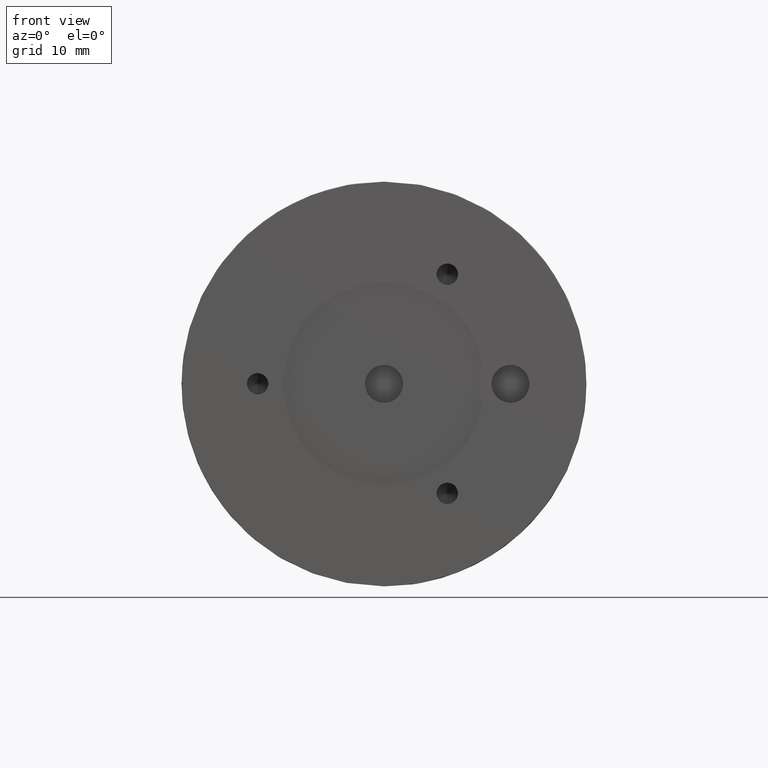
[diagram: clean part render]
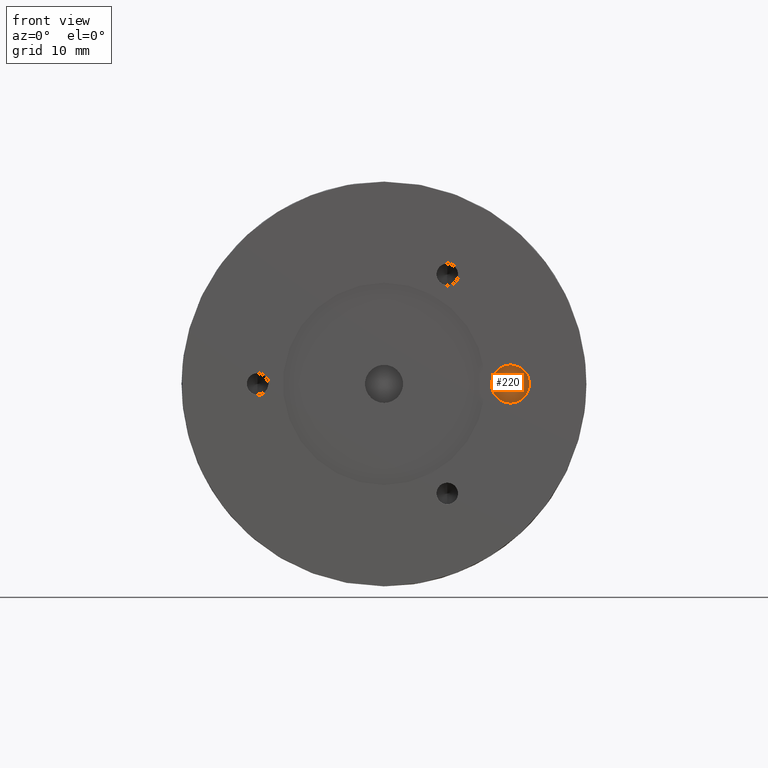
[diagram: same view with one face highlighted and labeled with its STEP entity id]
A machine part, front view. The second image highlights one B-rep face of the part: STEP entity #220.
In plain terms, the highlighted planar face has unit normal (0, 1, 0).
Its self-contained STEP definition (entity closure, byte-faithful):
#8 = ORIENTED_EDGE ( 'NONE', *, *, #633, .T. ) ;
#38 = ORIENTED_EDGE ( 'NONE', *, *, #161, .T. ) ;
#110 = DIRECTION ( 'NONE',  ( 0.0000000000000000000, -0.0000000000000000000, 1.000000000000000000 ) ) ;
#123 = VERTEX_POINT ( 'NONE', #692 ) ;
#161 = EDGE_CURVE ( 'NONE', #123, #541, #634, .T. ) ;
#220 = ADVANCED_FACE ( 'NONE', ( #271 ), #243, .F. ) ;
#243 = PLANE ( 'NONE',  #250 ) ;
#250 = AXIS2_PLACEMENT_3D ( 'NONE', #573, #580, #110 ) ;
#271 = FACE_OUTER_BOUND ( 'NONE', #796, .T. ) ;
#317 = CARTESIAN_POINT ( 'NONE',  ( 15.87500000000000000, 4.320000000000000284, 2.387500000000000622 ) ) ;
#356 = CARTESIAN_POINT ( 'NONE',  ( 15.87500000000000000, 4.320000000000000284, 0.0000000000000000000 ) ) ;
#414 = DIRECTION ( 'NONE',  ( -0.0000000000000000000, -1.000000000000000000, -0.0000000000000000000 ) ) ;
#426 = DIRECTION ( 'NONE',  ( 0.0000000000000000000, 0.0000000000000000000, -1.000000000000000000 ) ) ;
#541 = VERTEX_POINT ( 'NONE', #317 ) ;
#559 = AXIS2_PLACEMENT_3D ( 'NONE', #356, #825, #426 ) ;
#573 = CARTESIAN_POINT ( 'NONE',  ( 15.87500000000000000, 4.319999999999995843, 0.0000000000000000000 ) ) ;
#580 = DIRECTION ( 'NONE',  ( 0.0000000000000000000, 1.000000000000000000, 0.0000000000000000000 ) ) ;
#633 = EDGE_CURVE ( 'NONE', #541, #123, #776, .T. ) ;
#634 = CIRCLE ( 'NONE', #559, 2.387500000000000622 ) ;
#672 = CARTESIAN_POINT ( 'NONE',  ( 15.87500000000000000, 4.320000000000000284, 0.0000000000000000000 ) ) ;
#678 = DIRECTION ( 'NONE',  ( 0.0000000000000000000, 0.0000000000000000000, -1.000000000000000000 ) ) ;
#692 = CARTESIAN_POINT ( 'NONE',  ( 15.87500000000000000, 4.320000000000000284, -2.387500000000000622 ) ) ;
#700 = AXIS2_PLACEMENT_3D ( 'NONE', #672, #414, #678 ) ;
#776 = CIRCLE ( 'NONE', #700, 2.387500000000000622 ) ;
#796 = EDGE_LOOP ( 'NONE', ( #38, #8 ) ) ;
#825 = DIRECTION ( 'NONE',  ( -0.0000000000000000000, -1.000000000000000000, -0.0000000000000000000 ) ) ;